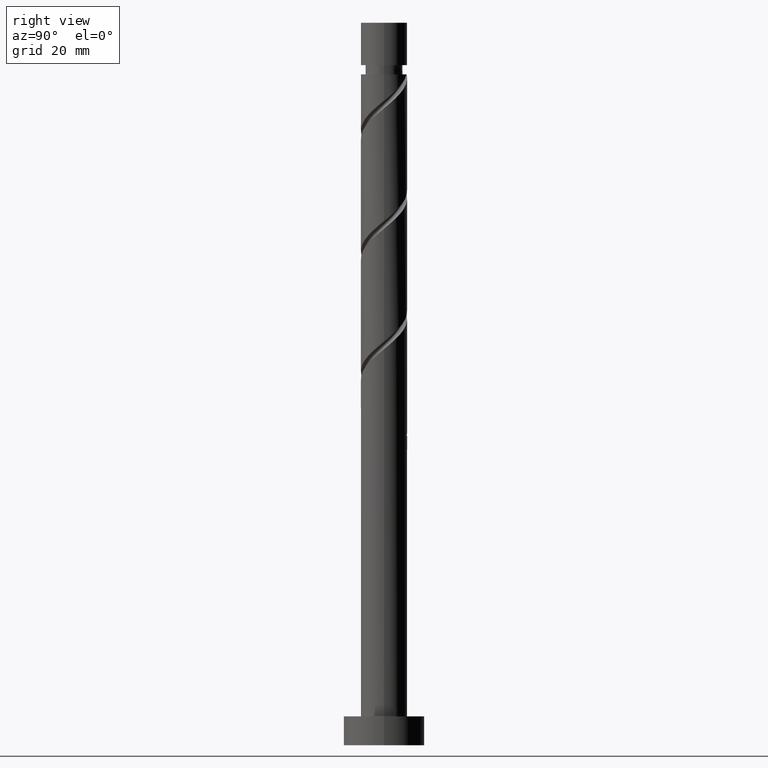
[diagram: clean part render]
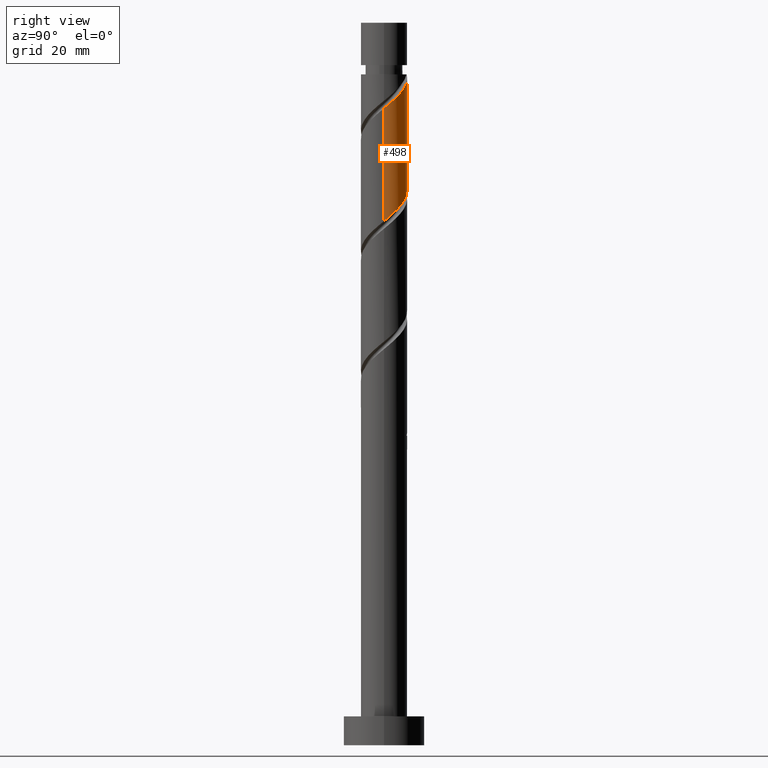
[diagram: same view with one face highlighted and labeled with its STEP entity id]
A machine part, right view. The second image highlights one B-rep face of the part: STEP entity #498.
In plain terms, the highlighted cylindrical surface (edge-blend (fillet) strip) has radius 4 mm, axis along (-0, -0, -1).
Its self-contained STEP definition (entity closure, byte-faithful):
#16 = CARTESIAN_POINT ( 'NONE',  ( -3.482167122072585830, 1.968378046503445944, 99.40681801249280625 ) ) ;
#45 = VECTOR ( 'NONE', #1515, 1000.000000000000000 ) ;
#46 = CARTESIAN_POINT ( 'NONE',  ( 4.000000000000000000, 4.898587196589412829E-16, 125.0000000000000000 ) ) ;
#49 = CARTESIAN_POINT ( 'NONE',  ( 2.519899137249414167, 3.170406666830034137, 93.67765134582609221 ) ) ;
#69 = CARTESIAN_POINT ( 'NONE',  ( 4.000000000000005329, 6.297103168946404406E-16, 110.2003489043558631 ) ) ;
#85 = VERTEX_POINT ( 'NONE', #1014 ) ;
#127 = VECTOR ( 'NONE', #1551, 1000.000000000000000 ) ;
#155 = CARTESIAN_POINT ( 'NONE',  ( 3.974115965681417784, 0.4543151893961412391, 91.07348467915947765 ) ) ;
#215 = CARTESIAN_POINT ( 'NONE',  ( -0.7959899496852910206, 3.919999999999743245, 116.0734846791594777 ) ) ;
#225 = CARTESIAN_POINT ( 'NONE',  ( 1.083753322405400121, 3.902159508677979005, 114.5109846791594208 ) ) ;
#234 = DIRECTION ( 'NONE',  ( -0.000000000000000000, -0.000000000000000000, -1.000000000000000000 ) ) ;
#237 = CARTESIAN_POINT ( 'NONE',  ( 0.000000000000000000, 0.000000000000000000, 116.0734846791594634 ) ) ;
#249 =( BOUNDED_CURVE ( )  B_SPLINE_CURVE ( 2, ( #69, #922, #1568, #594, #943, #582, #1114, #572, #1103, #225, #1092, #319, #215 ),
 .UNSPECIFIED., .F., .T. ) 
 B_SPLINE_CURVE_WITH_KNOTS ( ( 3, 2, 2, 2, 2, 2, 3 ),
 ( 0.6795322023138551382, 0.6875000000000000000, 0.6999999999999999556, 0.7125000000000000222, 0.7249999999999999778, 0.7375000000000000444, 0.7500000000000000000 ),
 .UNSPECIFIED. ) 
 CURVE ( )  GEOMETRIC_REPRESENTATION_ITEM ( )  RATIONAL_B_SPLINE_CURVE ( ( 0.9039174447099396215, 0.9019565955404689195, 0.9090909090909172763, 0.8978984914501335624, 0.9090909090909172763, 0.8978984914501335624, 0.9090909090909172763, 0.8978984914501335624, 0.9090909090909172763, 0.8978984914501335624, 0.9090909090909172763, 0.8978984914501335624, 0.9090909090909172763 ) ) 
 REPRESENTATION_ITEM ( '' )  );
#255 = CARTESIAN_POINT ( 'NONE',  ( -0.4543151893961419052, 3.974115965681417784, 96.28181801249280625 ) ) ;
#263 = CARTESIAN_POINT ( 'NONE',  ( 3.639217771347837971, 1.660148792339430024, 92.11515134582612063 ) ) ;
#318 = CARTESIAN_POINT ( 'NONE',  ( -4.000000000000000000, 0.000000000000000000, 125.0000000000000000 ) ) ;
#319 = CARTESIAN_POINT ( 'NONE',  ( -0.1751229436131119532, 4.046072422684866332, 115.5526513458261206 ) ) ;
#332 = LINE ( 'NONE', #318, #127 ) ;
#342 = VERTEX_POINT ( 'NONE', #829 ) ;
#348 = CARTESIAN_POINT ( 'NONE',  ( -3.793927577315138855, 1.416856955757478165, 99.92765134582612063 ) ) ;
#380 = CARTESIAN_POINT ( 'NONE',  ( -3.999999999999998224, 0.000000000000000000, 116.0734846791594634 ) ) ;
#382 = AXIS2_PLACEMENT_3D ( 'NONE', #1157, #1519, #1046 ) ;
#394 = CARTESIAN_POINT ( 'NONE',  ( 3.902159508677975008, 1.083753322405396569, 91.59431801249280625 ) ) ;
#459 = VERTEX_POINT ( 'NONE', #380 ) ;
#479 = CARTESIAN_POINT ( 'NONE',  ( -3.170406666830034137, 2.519899137249413279, 98.88598467915947765 ) ) ;
#498 = ADVANCED_FACE ( 'NONE', ( #1277 ), #526, .T. ) ;
#511 = CARTESIAN_POINT ( 'NONE',  ( 4.000000000000000000, -4.737820479493044903E-15, 90.69662045396307803 ) ) ;
#526 = CYLINDRICAL_SURFACE ( 'NONE', #382, 4.000000000000000000 ) ;
#554 = ORIENTED_EDGE ( 'NONE', *, *, #1057, .F. ) ;
#572 = CARTESIAN_POINT ( 'NONE',  ( 2.236544262273469474, 3.376276034017707151, 113.4693180124927494 ) ) ;
#582 = CARTESIAN_POINT ( 'NONE',  ( 3.170406666830039466, 2.519899137249415499, 112.4276513458261064 ) ) ;
#586 = EDGE_CURVE ( 'NONE', #459, #342, #1526, .T. ) ;
#587 = DIRECTION ( 'NONE',  ( -1.000000000000000000, 0.000000000000000000, 0.000000000000000000 ) ) ;
#594 = CARTESIAN_POINT ( 'NONE',  ( 3.793927577315143740, 1.416856955757478387, 111.3859846791594777 ) ) ;
#604 = EDGE_CURVE ( 'NONE', #629, #85, #1558, .T. ) ;
#607 = CARTESIAN_POINT ( 'NONE',  ( 1.968378046503446832, 3.482167122072585830, 94.19848467915944923 ) ) ;
#609 = CARTESIAN_POINT ( 'NONE',  ( -3.999999999999999112, 0.4020151261036857826, 100.7789825452218935 ) ) ;
#629 = VERTEX_POINT ( 'NONE', #1509 ) ;
#636 = CARTESIAN_POINT ( 'NONE',  ( -2.236544262273464589, 3.376276034017703598, 97.84431801249277783 ) ) ;
#693 = VERTEX_POINT ( 'NONE', #1062 ) ;
#731 = CARTESIAN_POINT ( 'NONE',  ( 1.416856955757478609, 3.793927577315137079, 94.71931801249279204 ) ) ;
#735 = EDGE_CURVE ( 'NONE', #693, #342, #249, .T. ) ;
#816 = AXIS2_PLACEMENT_3D ( 'NONE', #237, #234, #587 ) ;
#829 = CARTESIAN_POINT ( 'NONE',  ( -0.7959899496852910206, 3.919999999999743245, 116.0734846791594777 ) ) ;
#843 = CARTESIAN_POINT ( 'NONE',  ( -4.000000000000000000, 2.218979211914463814E-15, 101.1132871206297494 ) ) ;
#849 = CARTESIAN_POINT ( 'NONE',  ( -1.660148792339431134, 3.639217771347837971, 97.32348467915946344 ) ) ;
#857 = CARTESIAN_POINT ( 'NONE',  ( 0.7959899496852965717, 3.919999999999999929, 95.24015134582613484 ) ) ;
#864 = LINE ( 'NONE', #46, #45 ) ;
#877 = ORIENTED_EDGE ( 'NONE', *, *, #604, .F. ) ;
#907 = EDGE_CURVE ( 'NONE', #693, #85, #864, .T. ) ;
#922 = CARTESIAN_POINT ( 'NONE',  ( 4.000000000000006217, 0.4020151261036802315, 110.5346534797636906 ) ) ;
#943 = CARTESIAN_POINT ( 'NONE',  ( 3.482167122072593379, 1.968378046503447498, 111.9068180124927920 ) ) ;
#1013 = CARTESIAN_POINT ( 'NONE',  ( -1.083753322405397235, 3.902159508677975008, 96.80265134582613484 ) ) ;
#1014 = CARTESIAN_POINT ( 'NONE',  ( 4.000000000000000000, -4.737820479493044903E-15, 90.69662045396307803 ) ) ;
#1046 = DIRECTION ( 'NONE',  ( -1.000000000000000000, 0.000000000000000000, 0.000000000000000000 ) ) ;
#1057 = EDGE_CURVE ( 'NONE', #459, #629, #332, .T. ) ;
#1062 = CARTESIAN_POINT ( 'NONE',  ( 4.000000000000005329, 6.297103168946404406E-16, 110.2003489043558631 ) ) ;
#1071 = ORIENTED_EDGE ( 'NONE', *, *, #735, .F. ) ;
#1092 = CARTESIAN_POINT ( 'NONE',  ( 0.4543151893961442922, 3.974115965681424001, 115.0318180124928205 ) ) ;
#1103 = CARTESIAN_POINT ( 'NONE',  ( 1.660148792339435353, 3.639217771347843744, 113.9901513458261348 ) ) ;
#1114 = CARTESIAN_POINT ( 'NONE',  ( 2.703475464551754914, 2.948087585633561325, 112.9484846791594777 ) ) ;
#1117 = CARTESIAN_POINT ( 'NONE',  ( -3.919999999999999929, 0.7959899496852959055, 100.4484846791594777 ) ) ;
#1146 = CARTESIAN_POINT ( 'NONE',  ( 4.000000000000000000, 0.2278949497857344908, 90.88613154317036447 ) ) ;
#1157 = CARTESIAN_POINT ( 'NONE',  ( 0.000000000000000000, 0.000000000000000000, 125.0000000000000000 ) ) ;
#1239 = CARTESIAN_POINT ( 'NONE',  ( 2.948087585633558660, 2.703475464551749141, 93.15681801249279204 ) ) ;
#1277 = FACE_OUTER_BOUND ( 'NONE', #1368, .T. ) ;
#1368 = EDGE_LOOP ( 'NONE', ( #1071, #1408, #877, #554, #1505 ) ) ;
#1371 = CARTESIAN_POINT ( 'NONE',  ( 3.376276034017704042, 2.236544262273463701, 92.63598467915944923 ) ) ;
#1408 = ORIENTED_EDGE ( 'NONE', *, *, #907, .T. ) ;
#1475 = CARTESIAN_POINT ( 'NONE',  ( -2.703475464551749585, 2.948087585633557772, 98.36515134582616326 ) ) ;
#1489 = CARTESIAN_POINT ( 'NONE',  ( 0.1751229436131134243, 4.046072422684861891, 95.76098467915947765 ) ) ;
#1505 = ORIENTED_EDGE ( 'NONE', *, *, #586, .T. ) ;
#1509 = CARTESIAN_POINT ( 'NONE',  ( -4.000000000000000000, 2.218979211914463814E-15, 101.1132871206297494 ) ) ;
#1515 = DIRECTION ( 'NONE',  ( -0.000000000000000000, -0.000000000000000000, -1.000000000000000000 ) ) ;
#1519 = DIRECTION ( 'NONE',  ( -0.000000000000000000, -0.000000000000000000, -1.000000000000000000 ) ) ;
#1526 = CIRCLE ( 'NONE', #816, 3.999999999999998224 ) ;
#1551 = DIRECTION ( 'NONE',  ( -0.000000000000000000, -0.000000000000000000, -1.000000000000000000 ) ) ;
#1558 =( BOUNDED_CURVE ( )  B_SPLINE_CURVE ( 2, ( #843, #609, #1117, #348, #16, #479, #1475, #636, #849, #1013, #255, #1489, #857, #731, #607, #49, #1239, #1371, #263, #394, #155, #1146, #511 ),
 .UNSPECIFIED., .F., .T. ) 
 B_SPLINE_CURVE_WITH_KNOTS ( ( 3, 2, 2, 2, 2, 2, 2, 2, 2, 2, 2, 3 ),
 ( 0.4295322023138551937, 0.4375000000000000000, 0.4500000000000000111, 0.4625000000000000222, 0.4749999999999999778, 0.4874999999999999889, 0.5000000000000000000, 0.5124999999999999556, 0.5250000000000000222, 0.5374999999999999778, 0.5500000000000000444, 0.5545322023138551382 ),
 .UNSPECIFIED. ) 
 CURVE ( )  GEOMETRIC_REPRESENTATION_ITEM ( )  RATIONAL_B_SPLINE_CURVE ( ( 0.9039174447099330711, 0.9019565955404624802, 0.9090909090909108370, 0.8978984914501269010, 0.9090909090909108370, 0.8978984914501269010, 0.9090909090909108370, 0.8978984914501269010, 0.9090909090909108370, 0.8978984914501269010, 0.9090909090909108370, 0.8978984914501269010, 0.9090909090909108370, 0.8978984914501269010, 0.9090909090909108370, 0.8978984914501269010, 0.9090909090909108370, 0.8978984914501269010, 0.9090909090909108370, 0.8978984914501269010, 0.9090909090909108370, 0.9050328050005752578, 0.9039174447099329601 ) ) 
 REPRESENTATION_ITEM ( '' )  );
#1568 = CARTESIAN_POINT ( 'NONE',  ( 3.920000000000007034, 0.7959899496852955725, 110.8651513458261064 ) ) ;